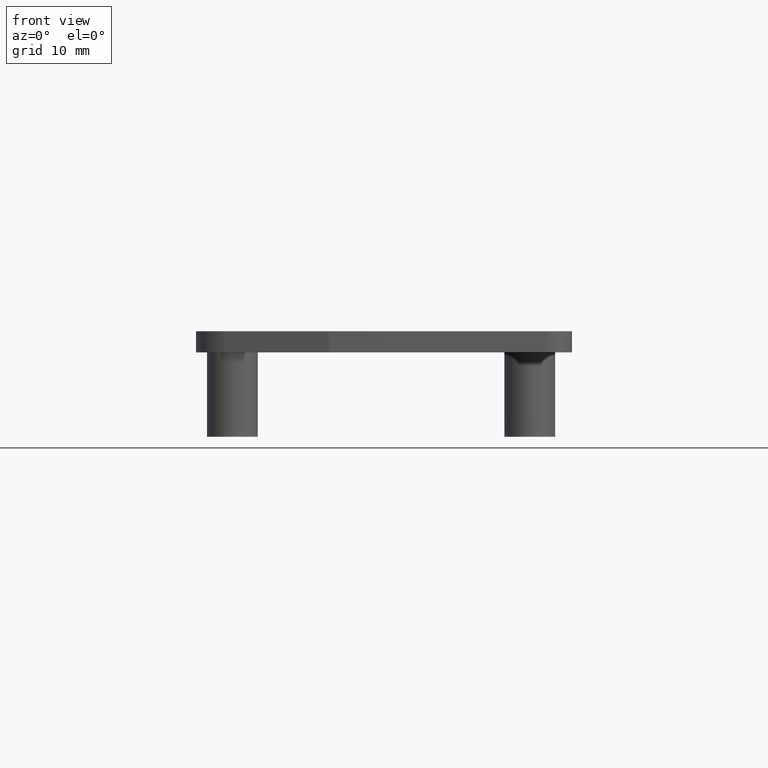
[diagram: clean part render]
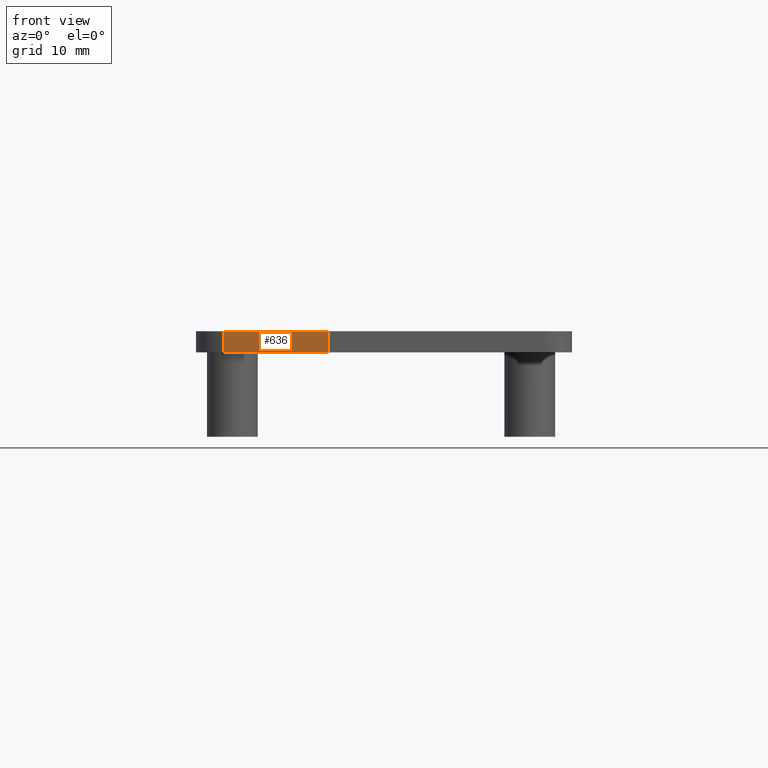
[diagram: same view with one face highlighted and labeled with its STEP entity id]
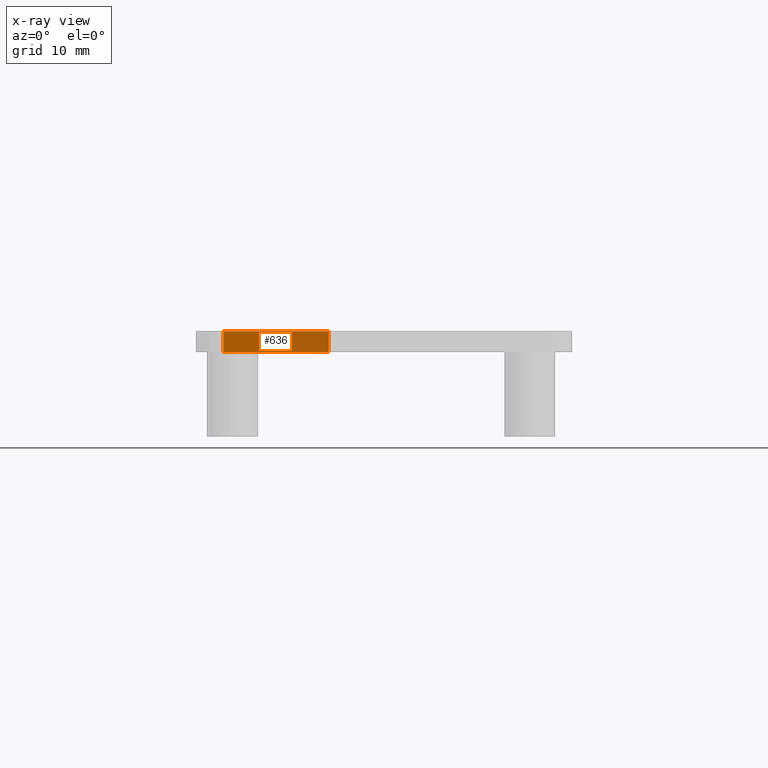
[diagram: x-ray of the same camera — body ghosted, the highlighted face saturated]
A machine part, front view. The second image highlights one B-rep face of the part: STEP entity #636.
The next image is the same camera in x-ray: the body ghosted, the highlighted face saturated — about 0% of this face is hidden behind the body in this view.
In plain terms, the highlighted planar face has unit normal (-0.2414, -0.9704, 0).
Its self-contained STEP definition (entity closure, byte-faithful):
#78=FACE_OUTER_BOUND('',#118,.T.);
#118=EDGE_LOOP('',(#453,#454,#455,#456));
#174=LINE('',#1012,#232);
#175=LINE('',#1016,#233);
#176=LINE('',#1018,#234);
#177=LINE('',#1019,#235);
#232=VECTOR('',#805,2.5);
#233=VECTOR('',#810,12.8346385930391);
#234=VECTOR('',#811,2.5);
#235=VECTOR('',#812,12.8346385930391);
#289=VERTEX_POINT('',#1009);
#290=VERTEX_POINT('',#1011);
#291=VERTEX_POINT('',#1015);
#292=VERTEX_POINT('',#1017);
#355=EDGE_CURVE('',#289,#290,#174,.T.);
#357=EDGE_CURVE('',#289,#291,#175,.T.);
#358=EDGE_CURVE('',#291,#292,#176,.T.);
#359=EDGE_CURVE('',#290,#292,#177,.T.);
#453=ORIENTED_EDGE('',*,*,#357,.T.);
#454=ORIENTED_EDGE('',*,*,#358,.T.);
#455=ORIENTED_EDGE('',*,*,#359,.F.);
#456=ORIENTED_EDGE('',*,*,#355,.F.);
#609=PLANE('',#705);
#636=ADVANCED_FACE('',(#78),#609,.T.);
#705=AXIS2_PLACEMENT_3D('',#1014,#808,#809);
#805=DIRECTION('',(0.,0.,1.));
#808=DIRECTION('center_axis',(-0.24137787488774,-0.970431203906119,0.));
#809=DIRECTION('ref_axis',(0.,0.,-1.));
#810=DIRECTION('',(0.970431203906118,-0.24137787488774,0.));
#811=DIRECTION('',(0.,0.,1.));
#812=DIRECTION('',(0.970431203906118,-0.24137787488774,0.));
#1009=CARTESIAN_POINT('',(3.26207513795816,-33.5078541766488,0.));
#1011=CARTESIAN_POINT('',(3.26207513795816,-33.5078541766488,2.5));
#1012=CARTESIAN_POINT('',(3.26207513795816,-33.5078541766488,0.));
#1014=CARTESIAN_POINT('Origin',(3.26207513795816,-33.5078541766488,0.));
#1015=CARTESIAN_POINT('',(15.717208919501,-36.6058519651888,0.));
#1016=CARTESIAN_POINT('',(3.26207513795816,-33.5078541766488,0.));
#1017=CARTESIAN_POINT('',(15.717208919501,-36.6058519651888,2.5));
#1018=CARTESIAN_POINT('',(15.717208919501,-36.6058519651888,0.));
#1019=CARTESIAN_POINT('',(3.26207513795816,-33.5078541766488,2.5));